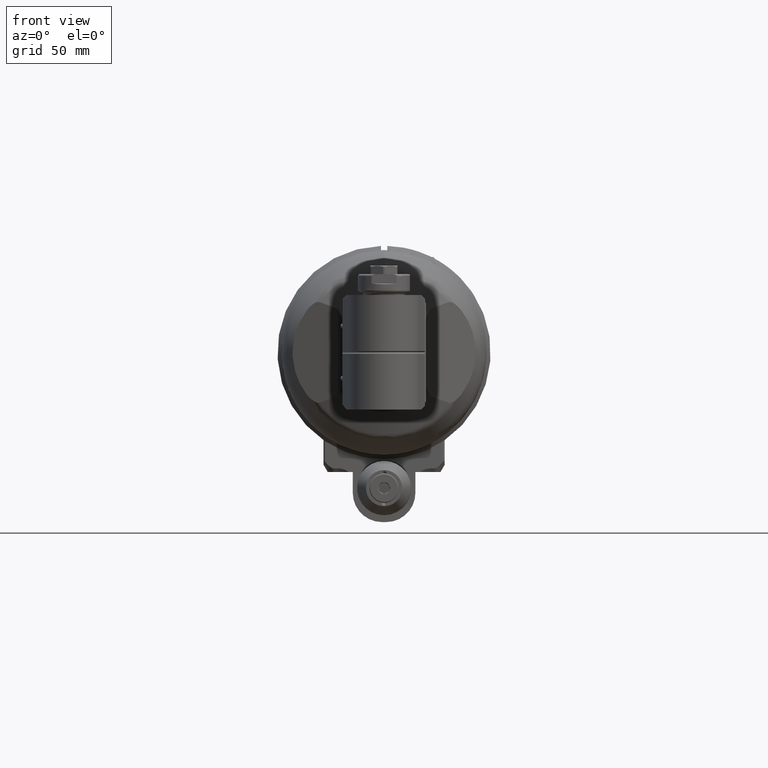
[diagram: clean part render]
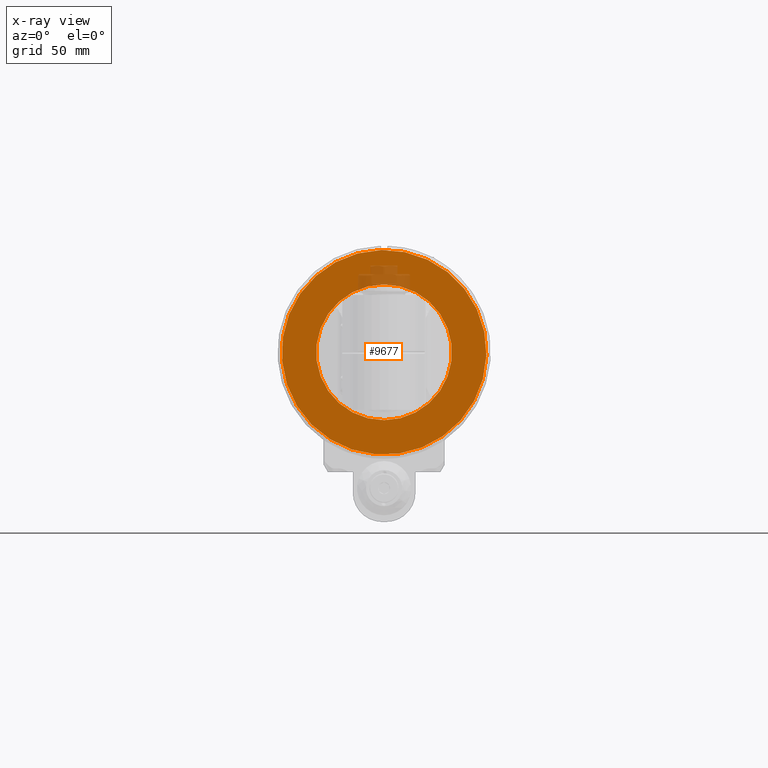
[diagram: x-ray — body ghosted, one internal face saturated and labeled with its STEP entity id]
A machine part, front view, then the same camera in x-ray: the body is ghosted and one INTERNAL B-rep face — a face not visible from any outside direction — is saturated and labeled: STEP entity #9677.
In plain terms, the highlighted planar face has unit normal (0, 1, 0).
Its self-contained STEP definition (entity closure, byte-faithful):
#422=FACE_BOUND('',#2136,.T.);
#946=PLANE('',#10811);
#1528=FACE_OUTER_BOUND('',#2135,.T.);
#2135=EDGE_LOOP('',(#8468));
#2136=EDGE_LOOP('',(#8469));
#3877=CIRCLE('',#10810,49.);
#3878=CIRCLE('',#10812,32.5);
#4730=VERTEX_POINT('',#47197);
#4731=VERTEX_POINT('',#47201);
#6014=EDGE_CURVE('',#4730,#4730,#3877,.T.);
#6015=EDGE_CURVE('',#4731,#4731,#3878,.T.);
#8468=ORIENTED_EDGE('',*,*,#6014,.T.);
#8469=ORIENTED_EDGE('',*,*,#6015,.T.);
#9677=ADVANCED_FACE('',(#1528,#422),#946,.T.);
#10810=AXIS2_PLACEMENT_3D('',#47199,#13107,#13108);
#10811=AXIS2_PLACEMENT_3D('',#47200,#13109,#13110);
#10812=AXIS2_PLACEMENT_3D('',#47202,#13111,#13112);
#13107=DIRECTION('center_axis',(-1.,0.,0.));
#13108=DIRECTION('ref_axis',(0.,-0.0871557427476639,0.996194698091745));
#13109=DIRECTION('center_axis',(-1.,0.,0.));
#13110=DIRECTION('ref_axis',(0.,1.,0.));
#13111=DIRECTION('center_axis',(1.,0.,0.));
#13112=DIRECTION('ref_axis',(0.,1.,0.));
#47197=CARTESIAN_POINT('',(31.,4.270631394635,-48.8135402065));
#47199=CARTESIAN_POINT('Origin',(31.,0.,0.));
#47200=CARTESIAN_POINT('Origin',(31.,38.25,0.));
#47201=CARTESIAN_POINT('',(31.,-32.5,3.9801020972289E-15));
#47202=CARTESIAN_POINT('Origin',(31.,0.,0.));